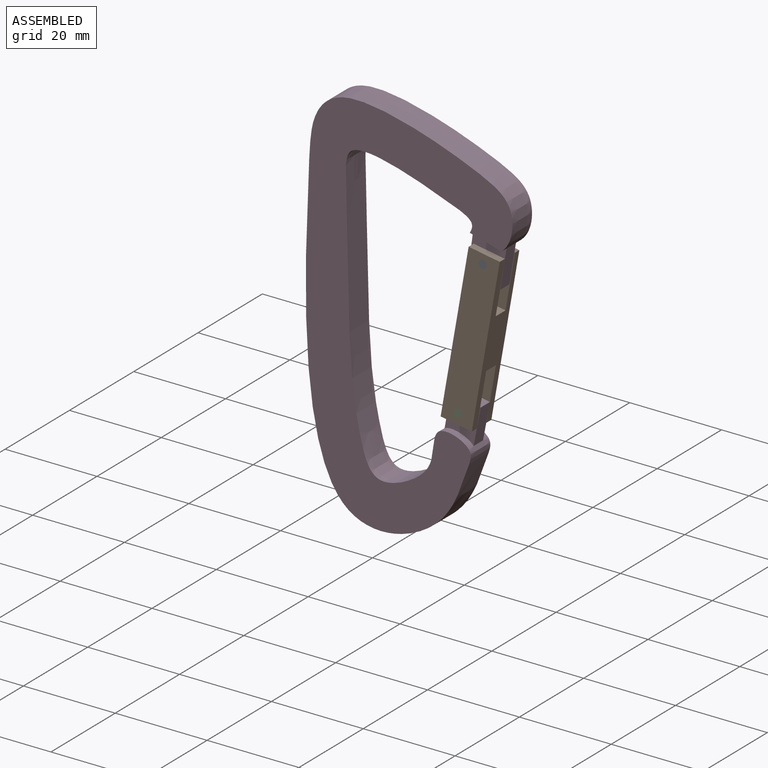
[diagram: assembled view]
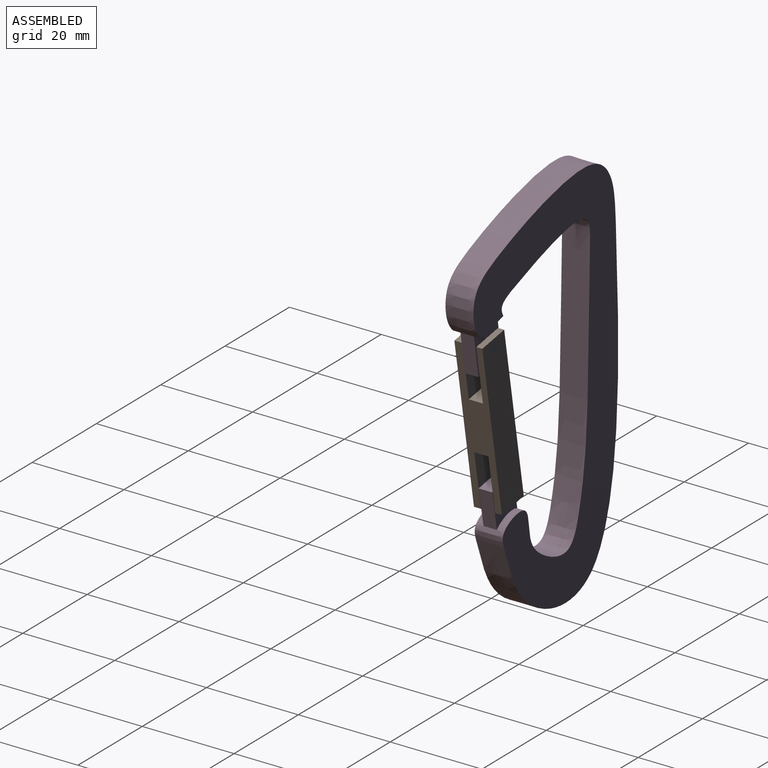
[diagram: assembled view, second angle]
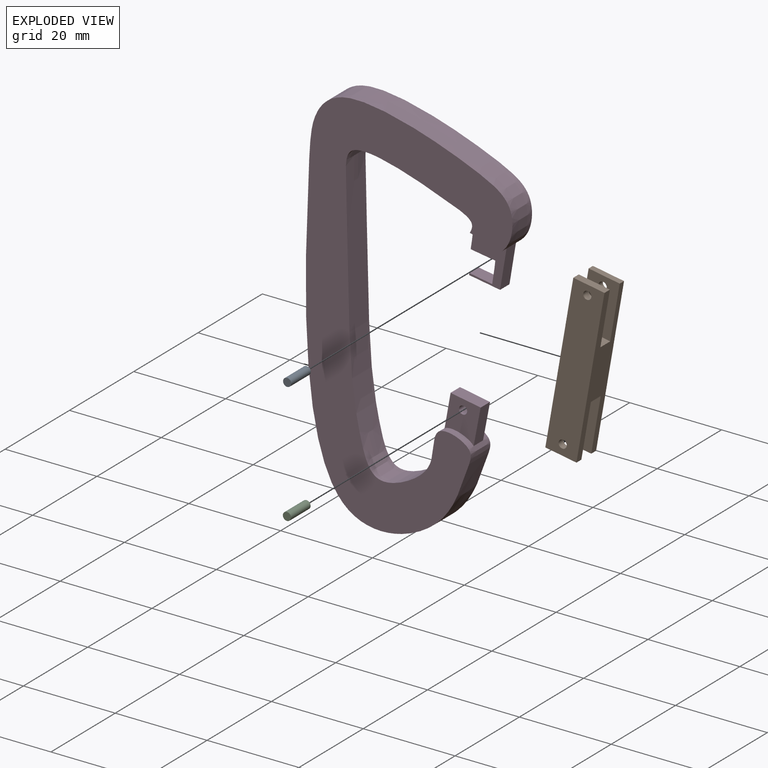
[diagram: exploded view]
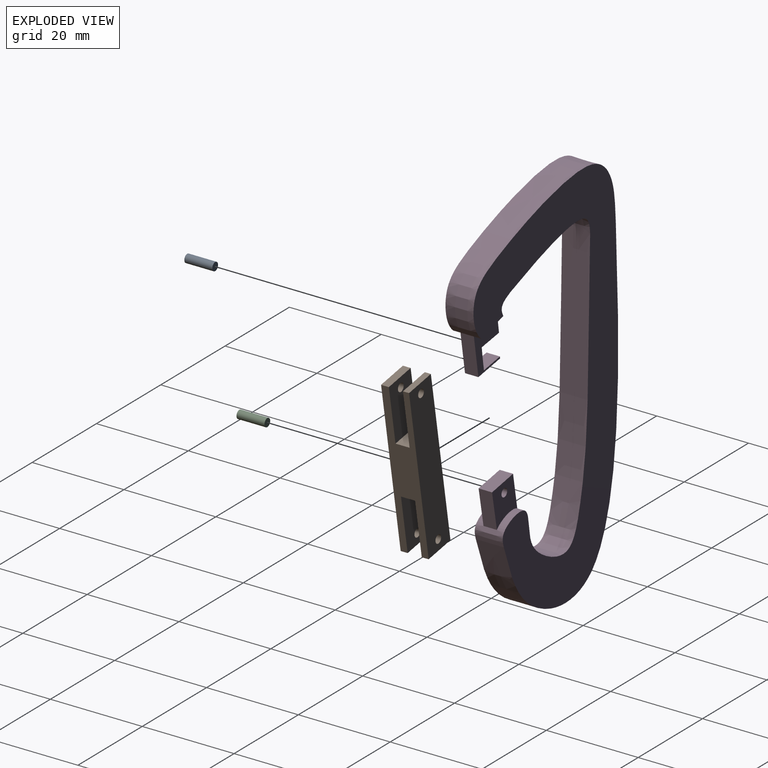
[diagram: exploded view, second angle]
ASSEMBLY  parts=4 mates=3
PART A: 3 faces, bbox 1.8x6.1x1.8 mm
  f0: cylinder r=0.89mm len=6.1mm, axis (0,1,0), area 34.1mm2, adj f1,f2
  f1: plane 1.78x1.78mm, normal (0,-1,0), area 2.5mm2, adj f0
  f2: plane 1.78x1.78mm, normal (0,1,0), area 2.5mm2, adj f0
PART B: 18 faces, bbox 6.9x6.1x35.6 mm
  f0: plane 6.88x1.52mm, normal (0,0,-1), area 10.5mm2, adj f1,f6,f8,f16
  f1: plane 35.56x6.1mm, normal (1,0,0), area 142.5mm2, adj f0,f3,f5,f7,f8,f9,f12,f13
  f2: cylinder r=0.89mm len=1.78mm, axis (0,-1,0), area 8.4mm2, adj f9,f15
  f3: plane 6.88x1.69mm, normal (0,0,1), area 11.7mm2, adj f1,f6,f8,f12
  f4: cylinder r=0.89mm len=1.78mm, axis (0,-1,0), area 9.5mm2, adj f8,f12
  f5: plane 6.88x1.33mm, normal (0,0,1), area 9.2mm2, adj f1,f6,f9,f13
  f6: plane 35.56x6.1mm, normal (-1,0,0), area 142.5mm2, adj f0,f3,f5,f7,f8,f9,f12,f13
  f7: plane 6.88x1.5mm, normal (0,0,-1), area 10.3mm2, adj f1,f6,f9,f15
  f8: plane 35.56x6.88mm, normal (0,-1,0), area 239.8mm2, adj f0,f1,f3,f4,f6,f10
  f9: plane 35.56x6.88mm, normal (0,1,0), area 239.8mm2, adj f1,f2,f5,f6,f7,f11
  f10: cylinder r=0.89mm len=1.78mm, axis (0,-1,0), area 8.5mm2, adj f8,f16
  f11: cylinder r=0.89mm len=1.78mm, axis (0,-1,0), area 7.4mm2, adj f9,f13
  f12: plane 12.09x6.88mm, normal (0,1,0), area 80.7mm2, adj f1,f3,f4,f6,f14
  f13: plane 12.09x6.88mm, normal (0,-1,0), area 80.7mm2, adj f1,f5,f6,f11,f14
  f14: plane 6.88x3.07mm, normal (0,0,1), area 21.2mm2, adj f1,f6,f12,f13
  f15: plane 12.09x6.88mm, normal (0,-1,0), area 80.7mm2, adj f1,f2,f6,f7,f17
  f16: plane 12.09x6.88mm, normal (0,1,0), area 80.7mm2, adj f0,f1,f6,f10,f17
  f17: plane 6.88x3.07mm, normal (0,0,-1), area 21.2mm2, adj f1,f6,f15,f16
PART C: 3 faces, bbox 1.8x6.1x1.8 mm
  f0: cylinder r=0.89mm len=6.1mm, axis (0,1,0), area 34.1mm2, adj f1,f2
  f1: plane 1.78x1.78mm, normal (0,-1,0), area 2.5mm2, adj f0
  f2: plane 1.78x1.78mm, normal (0,1,0), area 2.5mm2, adj f0
PART D: 27 faces, bbox 48.6x6.1x88.3 mm
  f0: extruded ~6.33x2.11mm, area 11mm2, adj f15,f17,f20,f26
  f1: plane 2.92x1.27mm, normal (-0.99,0,0.13), area 3.8mm2, adj f2,f11,f12,f13
  f2: plane 2.92x1.84mm, normal (-0.99,0,0.15), area 5.4mm2, adj f1,f3,f12,f13
  f3: plane 5.37x2.92mm, normal (-0.15,0,-0.99), area 15.9mm2, adj f2,f4,f12,f13
  f4: plane 2.92x1.63mm, normal (-0.99,0,0.12), area 4.8mm2, adj f3,f5,f12,f13
  f5: plane 3.15x2.92mm, normal (-0.99,0,0.15), area 9.3mm2, adj f4,f6,f12,f13
  f6: plane 2.92x0.76mm, normal (0.17,0,0.98), area 2.2mm2, adj f5,f7,f12,f13
  f7: plane 4.21x2.92mm, normal (0.16,0,0.99), area 12.5mm2, adj f6,f8,f12,f13
  f8: plane 2.92x0.39mm, normal (-0.99,0,0.16), area 1.2mm2, adj f7,f9,f12,f13
  f9: plane 6.75x2.92mm, normal (-0.16,0,-0.99), area 20mm2, adj f8,f10,f12,f13
  f10: plane 8.52x2.92mm, normal (0.99,0,-0.16), area 25.2mm2, adj f9,f12,f13,f17
  f11: extruded ~2.92x0.96mm, area 3.1mm2, adj f1,f12,f13,f15
  f12: plane 10.37x8.16mm, normal (0,-1,0), area 39.5mm2, adj f1,f2,f3,f4,f5,f6,f7,f8
  f13: plane 10.37x8.16mm, normal (0,1,0), area 39.5mm2, adj f1,f2,f3,f4,f5,f6,f7,f8
  f14: plane 6.89x1.85mm, normal (-0.26,0,-0.97), area 11.3mm2, adj f12,f15,f17,f19
  f15: extruded ~63.62x27.47mm, area 706.7mm2, adj f0,f11,f14,f16,f18,f19,f20,f21
  f16: plane 6.89x1.85mm, normal (-0.26,0,-0.97), area 11.3mm2, adj f13,f15,f17,f20
  f17: extruded ~83.1x44.98mm, area 1065.6mm2, adj f0,f10,f14,f16,f18,f19,f20,f22
  f18: extruded ~6.33x2.11mm, area 11mm2, adj f15,f17,f19,f25
  f19: plane 88.3x48.57mm, normal (0,-1,0), area 1326.3mm2, adj f14,f15,f17,f18
  f20: plane 88.3x48.57mm, normal (0,1,0), area 1326.3mm2, adj f0,f15,f16,f17
  f21: plane 7.31x2.92mm, normal (-0.98,0,0.18), area 21.7mm2, adj f15,f23,f25,f26
  f22: plane 7.96x2.92mm, normal (0.98,0,-0.19), area 23.7mm2, adj f17,f23,f25,f26
  f23: plane 6.54x2.92mm, normal (0.18,0,0.98), area 19.4mm2, adj f21,f22,f25,f26
  f24: cylinder r=0.89mm len=2.92mm, axis (0,1,0), area 16.3mm2, adj f25,f26
  f25: plane 9.13x7.84mm, normal (0,-1,0), area 44.6mm2, adj f18,f21,f22,f23,f24
  f26: plane 9.13x7.84mm, normal (0,1,0), area 44.6mm2, adj f0,f21,f22,f23,f24
PLACE A rot(axis=(0,1,0),9.9deg) t=(83.72,13.73,-14.36)mm
PLACE B rot(axis=(0,1,0),9.9deg) t=(21.41,13.73,5.1)mm
PLACE C rot(axis=(0,1,0),9.9deg) t=(58.15,13.73,-40.13)mm
PLACE D t=(42.23,10.69,43.47)mm fixed
MATE revolute C.f0 <-> D.f24  axis (0,1,0) through (33.28,10.69,-17.49)mm
MATE fastened C.f0 <-> B.f2  axis (0,-1,0) through (33.28,7.64,-17.49)mm
MATE fastened B.f4 <-> A.f0  axis (0,-1,0) through (38.65,7.64,13.23)mm
